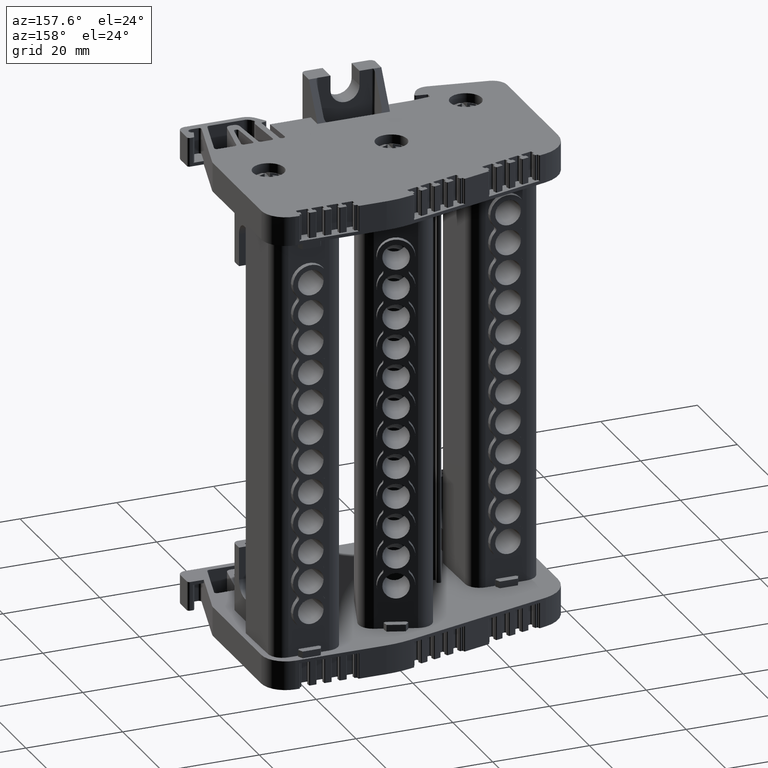
[diagram: clean part render]
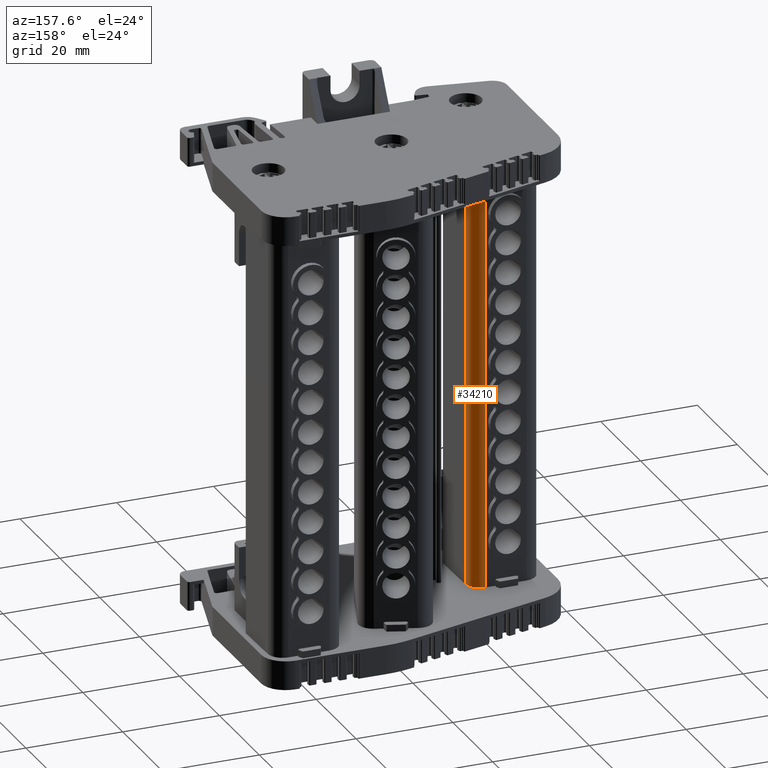
[diagram: same view with one face highlighted and labeled with its STEP entity id]
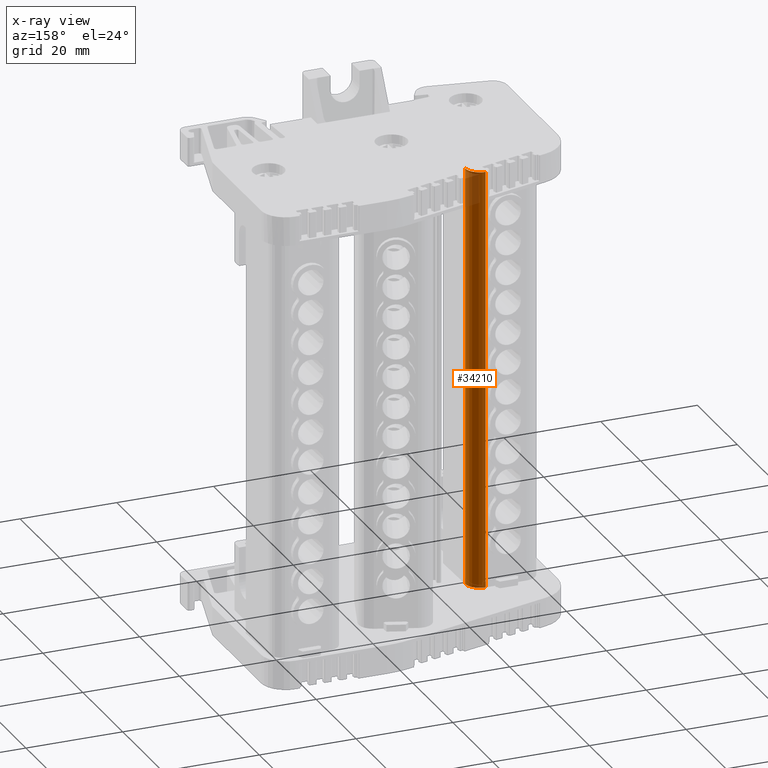
[diagram: x-ray of the same camera — body ghosted, the highlighted face saturated]
A machine part, auxiliary view. The second image highlights one B-rep face of the part: STEP entity #34210.
The next image is the same camera in x-ray: the body ghosted, the highlighted face saturated — about 5% of this face is hidden behind the body in this view.
In plain terms, the highlighted cylindrical surface (edge-blend (fillet) strip) has radius 3.0101 mm, axis along (-0, 0, -1).
Its self-contained STEP definition (entity closure, byte-faithful):
#3485 = FACE_OUTER_BOUND ( 'NONE', #55680, .T. ) ;
#3648 = CYLINDRICAL_SURFACE ( 'NONE', #84835, 3.010083036540323100 ) ;
#3664 = CARTESIAN_POINT ( 'NONE',  ( -316.6340389652848400, 213.0722644800198700, 176.8548958728996500 ) ) ;
#3780 = DIRECTION ( 'NONE',  ( -6.982962677686110500E-015, 1.604252062634190000E-014, -1.000000000000000000 ) ) ;
#3803 = DIRECTION ( 'NONE',  ( 0.0000000000000000000, 1.000000000000000000, 1.844173418387164300E-014 ) ) ;
#7583 = CARTESIAN_POINT ( 'NONE',  ( -313.6244143789705800, 213.1247976725853400, 100.3119239351456700 ) ) ;
#7726 = CARTESIAN_POINT ( 'NONE',  ( -316.6340389652855300, 216.0823475165613800, 100.3119239351457000 ) ) ;
#7734 = CARTESIAN_POINT ( 'NONE',  ( -313.6244143789712100, 213.1247976725867400, 13.41293318655215400 ) ) ;
#7745 = CARTESIAN_POINT ( 'NONE',  ( -316.6340389652858100, 216.0823475165627800, 13.41293318655218900 ) ) ;
#31624 = CARTESIAN_POINT ( 'NONE',  ( -316.6340389652854100, 213.0722644800210900, 100.3119239351456900 ) ) ;
#31629 = DIRECTION ( 'NONE',  ( -6.982962677686110500E-015, 1.604252062634190000E-014, -1.000000000000000000 ) ) ;
#31643 = DIRECTION ( 'NONE',  ( 0.0000000000000000000, 1.000000000000000000, 1.383130063790373000E-014 ) ) ;
#32691 = LINE ( 'NONE', #32726, #87791 ) ;
#32693 = DIRECTION ( 'NONE',  ( 3.229646657839724900E-028, 1.604252062634175800E-014, -1.000000000000000000 ) ) ;
#32712 = LINE ( 'NONE', #32782, #87729 ) ;
#32726 = CARTESIAN_POINT ( 'NONE',  ( -313.6244143789707000, 213.1247976725847500, 176.8548958728996200 ) ) ;
#32780 = DIRECTION ( 'NONE',  ( -6.982962677686110500E-015, 1.604252062634190000E-014, -1.000000000000000000 ) ) ;
#32782 = CARTESIAN_POINT ( 'NONE',  ( -316.6340389652856400, 216.0823475165601600, 176.8548958728996500 ) ) ;
#33012 = CARTESIAN_POINT ( 'NONE',  ( -316.6340389652860400, 213.0722644800224800, 13.41293318655217900 ) ) ;
#33038 = DIRECTION ( 'NONE',  ( 6.982962677686110500E-015, -1.604252062634190000E-014, 1.000000000000000000 ) ) ;
#33055 = DIRECTION ( 'NONE',  ( 1.844173418387164300E-014, 1.000000000000000000, 1.613651741088768500E-014 ) ) ;
#34210 = ADVANCED_FACE ( 'NONE', ( #3485 ), #3648, .T. ) ;
#55680 = EDGE_LOOP ( 'NONE', ( #109666, #109626, #109594, #109665 ) ) ;
#62544 = VERTEX_POINT ( 'NONE', #7583 ) ;
#62575 = VERTEX_POINT ( 'NONE', #7726 ) ;
#62586 = VERTEX_POINT ( 'NONE', #7734 ) ;
#62648 = VERTEX_POINT ( 'NONE', #7745 ) ;
#84835 = AXIS2_PLACEMENT_3D ( 'NONE', #3664, #3780, #3803 ) ;
#87729 = VECTOR ( 'NONE', #32693, 1000.000000000000000 ) ;
#87791 = VECTOR ( 'NONE', #32780, 1000.000000000000000 ) ;
#87843 = CIRCLE ( 'NONE', #87922, 3.010083036540323100 ) ;
#87922 = AXIS2_PLACEMENT_3D ( 'NONE', #33012, #33038, #33055 ) ;
#87986 = CIRCLE ( 'NONE', #87993, 3.010083036540323100 ) ;
#87993 = AXIS2_PLACEMENT_3D ( 'NONE', #31624, #31629, #31643 ) ;
#103971 = EDGE_CURVE ( 'NONE', #62575, #62544, #87986, .T. ) ;
#104163 = EDGE_CURVE ( 'NONE', #62544, #62586, #32691, .T. ) ;
#104180 = EDGE_CURVE ( 'NONE', #62575, #62648, #32712, .T. ) ;
#104250 = EDGE_CURVE ( 'NONE', #62586, #62648, #87843, .T. ) ;
#109594 = ORIENTED_EDGE ( 'NONE', *, *, #104163, .T. ) ;
#109626 = ORIENTED_EDGE ( 'NONE', *, *, #103971, .T. ) ;
#109665 = ORIENTED_EDGE ( 'NONE', *, *, #104250, .T. ) ;
#109666 = ORIENTED_EDGE ( 'NONE', *, *, #104180, .F. ) ;